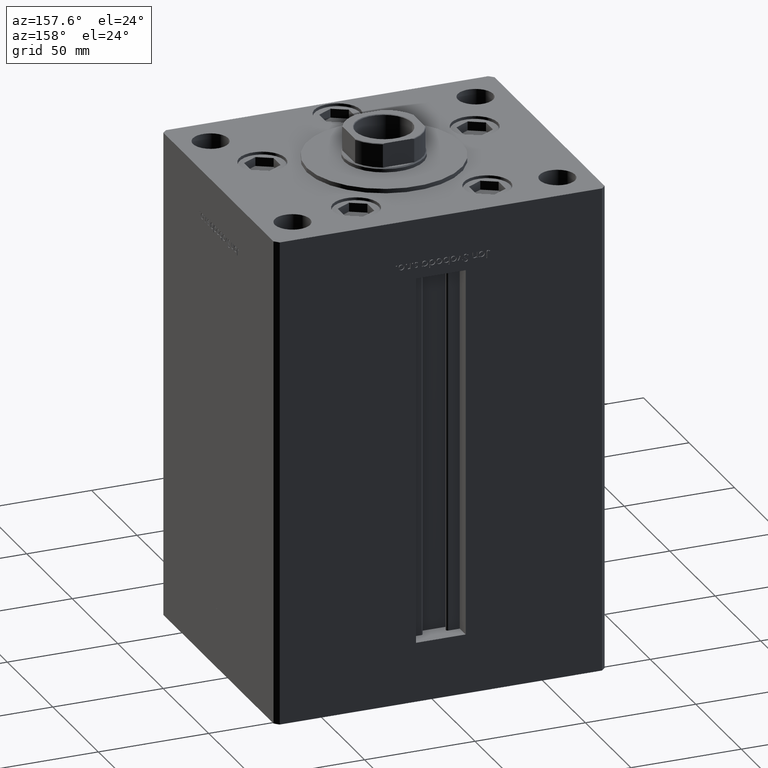
[diagram: clean part render]
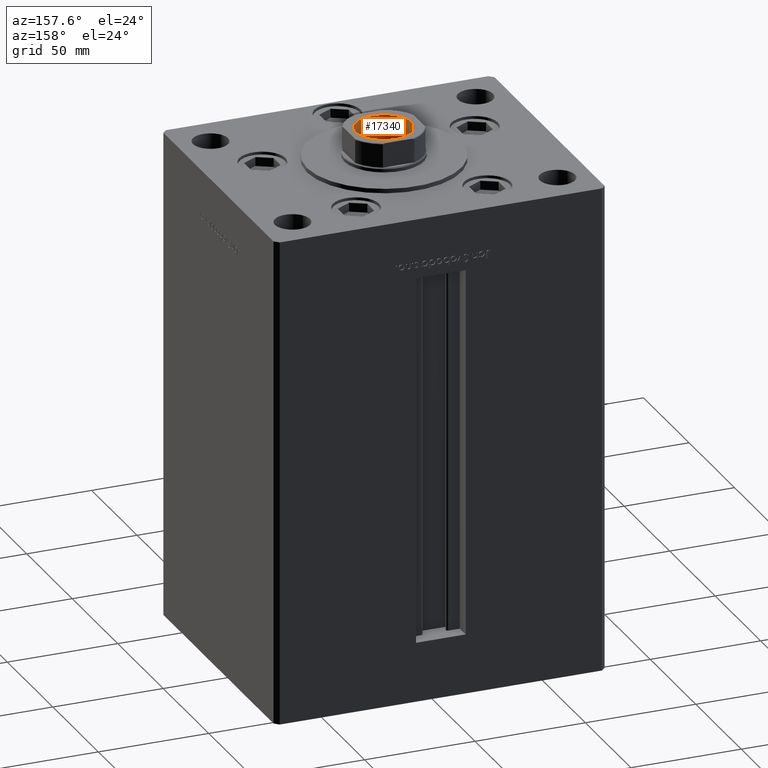
[diagram: same view with one face highlighted and labeled with its STEP entity id]
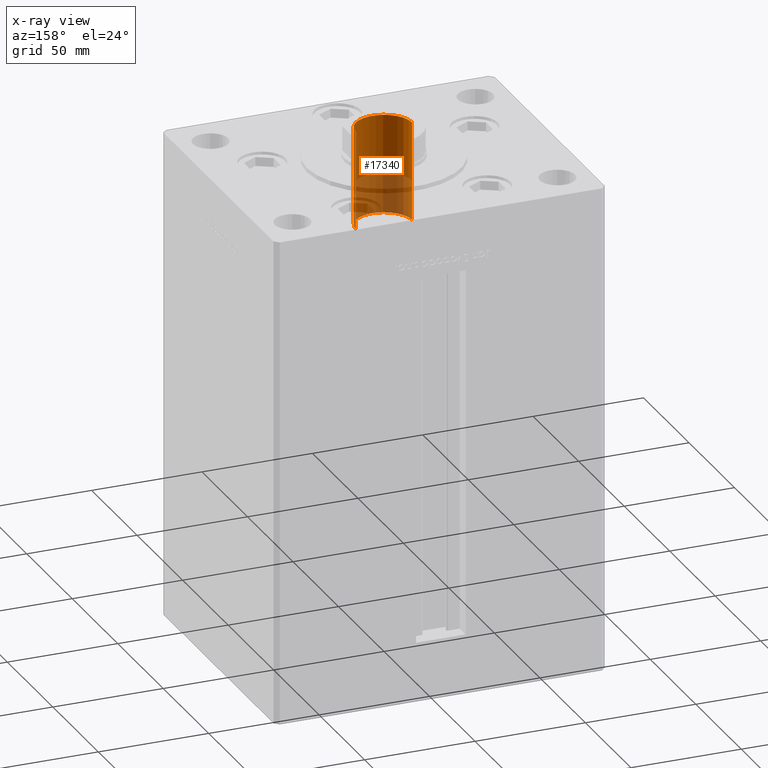
[diagram: x-ray of the same camera — body ghosted, the highlighted face saturated]
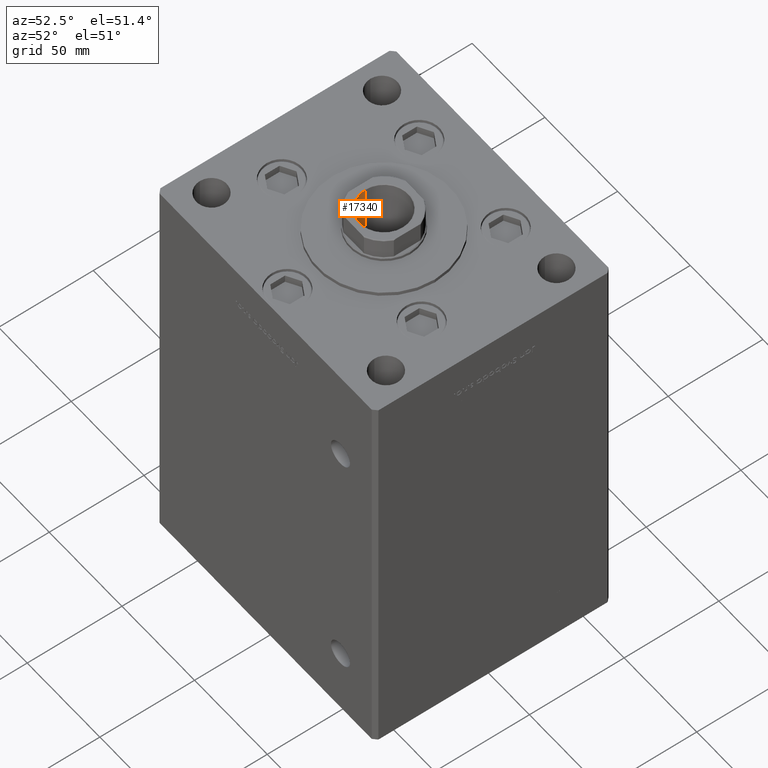
[diagram: same view with one face highlighted and labeled with its STEP entity id]
A machine part, auxiliary view. The second image highlights one B-rep face of the part: STEP entity #17340.
The next image is the same camera in x-ray: the body ghosted, the highlighted face saturated — about 40% of this face is hidden behind the body in this view.
A second angle (auxiliary view) of the same face is appended — the face is thin or edge-on in the first view.
In plain terms, the highlighted cylindrical surface (edge-blend (fillet) strip) has radius 12.75 mm, axis along (0, 0, 1).
Its self-contained STEP definition (entity closure, byte-faithful):
#809 = DIRECTION ( 'NONE',  ( 0.000000000000000000, 0.000000000000000000, 1.000000000000000000 ) ) ;
#941 = DIRECTION ( 'NONE',  ( -0.000000000000000000, -0.000000000000000000, 1.000000000000000000 ) ) ;
#1056 = VECTOR ( 'NONE', #941, 1000.000000000000000 ) ;
#2132 = CARTESIAN_POINT ( 'NONE',  ( 12.74999999999999112, 0.000000000000000000, 157.5000000000000284 ) ) ;
#2804 = CIRCLE ( 'NONE', #33071, 12.74999999999999467 ) ;
#6409 = DIRECTION ( 'NONE',  ( -0.000000000000000000, -0.000000000000000000, 1.000000000000000000 ) ) ;
#7245 = VERTEX_POINT ( 'NONE', #17391 ) ;
#8142 = DIRECTION ( 'NONE',  ( 1.000000000000000000, 0.000000000000000000, 0.000000000000000000 ) ) ;
#8602 = CARTESIAN_POINT ( 'NONE',  ( -12.74999999999999467, 1.561424668912874519E-15, 202.1999999999999602 ) ) ;
#8955 = ORIENTED_EDGE ( 'NONE', *, *, #46039, .T. ) ;
#10594 = EDGE_CURVE ( 'NONE', #41007, #7245, #2804, .T. ) ;
#10606 = EDGE_CURVE ( 'NONE', #24410, #13659, #37264, .T. ) ;
#12185 = CARTESIAN_POINT ( 'NONE',  ( -12.74999999999999112, 1.561424668912874125E-15, 157.5000000000000284 ) ) ;
#13659 = VERTEX_POINT ( 'NONE', #2132 ) ;
#15786 = DIRECTION ( 'NONE',  ( -0.000000000000000000, -0.000000000000000000, 1.000000000000000000 ) ) ;
#16882 = DIRECTION ( 'NONE',  ( -0.000000000000000000, -0.000000000000000000, 1.000000000000000000 ) ) ;
#17340 = ADVANCED_FACE ( 'NONE', ( #44215 ), #28939, .F. ) ;
#17391 = CARTESIAN_POINT ( 'NONE',  ( 12.74999999999999467, 0.000000000000000000, 202.1999999999999602 ) ) ;
#18008 = CARTESIAN_POINT ( 'NONE',  ( 12.74999999999999467, 0.000000000000000000, 202.5000000000000000 ) ) ;
#20289 = ORIENTED_EDGE ( 'NONE', *, *, #10594, .T. ) ;
#21530 = ORIENTED_EDGE ( 'NONE', *, *, #10606, .F. ) ;
#24410 = VERTEX_POINT ( 'NONE', #12185 ) ;
#28097 = CARTESIAN_POINT ( 'NONE',  ( -12.74999999999999467, 1.561424668912874519E-15, 202.5000000000000000 ) ) ;
#28939 = CYLINDRICAL_SURFACE ( 'NONE', #29913, 12.74999999999999467 ) ;
#29913 = AXIS2_PLACEMENT_3D ( 'NONE', #40522, #15786, #8142 ) ;
#32432 = DIRECTION ( 'NONE',  ( 1.000000000000000000, 0.000000000000000000, 0.000000000000000000 ) ) ;
#32939 = VECTOR ( 'NONE', #6409, 1000.000000000000000 ) ;
#32950 = CARTESIAN_POINT ( 'NONE',  ( 0.000000000000000000, 0.000000000000000000, 202.1999999999999602 ) ) ;
#33071 = AXIS2_PLACEMENT_3D ( 'NONE', #32950, #809, #32432 ) ;
#37264 = CIRCLE ( 'NONE', #41481, 12.74999999999999112 ) ;
#38388 = EDGE_LOOP ( 'NONE', ( #21530, #8955, #20289, #51040 ) ) ;
#39939 = LINE ( 'NONE', #28097, #1056 ) ;
#40522 = CARTESIAN_POINT ( 'NONE',  ( 0.000000000000000000, 0.000000000000000000, 202.5000000000000000 ) ) ;
#41007 = VERTEX_POINT ( 'NONE', #8602 ) ;
#41481 = AXIS2_PLACEMENT_3D ( 'NONE', #48765, #16882, #49043 ) ;
#43684 = EDGE_CURVE ( 'NONE', #13659, #7245, #50680, .T. ) ;
#44215 = FACE_OUTER_BOUND ( 'NONE', #38388, .T. ) ;
#46039 = EDGE_CURVE ( 'NONE', #24410, #41007, #39939, .T. ) ;
#48765 = CARTESIAN_POINT ( 'NONE',  ( 0.000000000000000000, 0.000000000000000000, 157.5000000000000284 ) ) ;
#49043 = DIRECTION ( 'NONE',  ( 1.000000000000000000, 0.000000000000000000, 0.000000000000000000 ) ) ;
#50680 = LINE ( 'NONE', #18008, #32939 ) ;
#51040 = ORIENTED_EDGE ( 'NONE', *, *, #43684, .F. ) ;